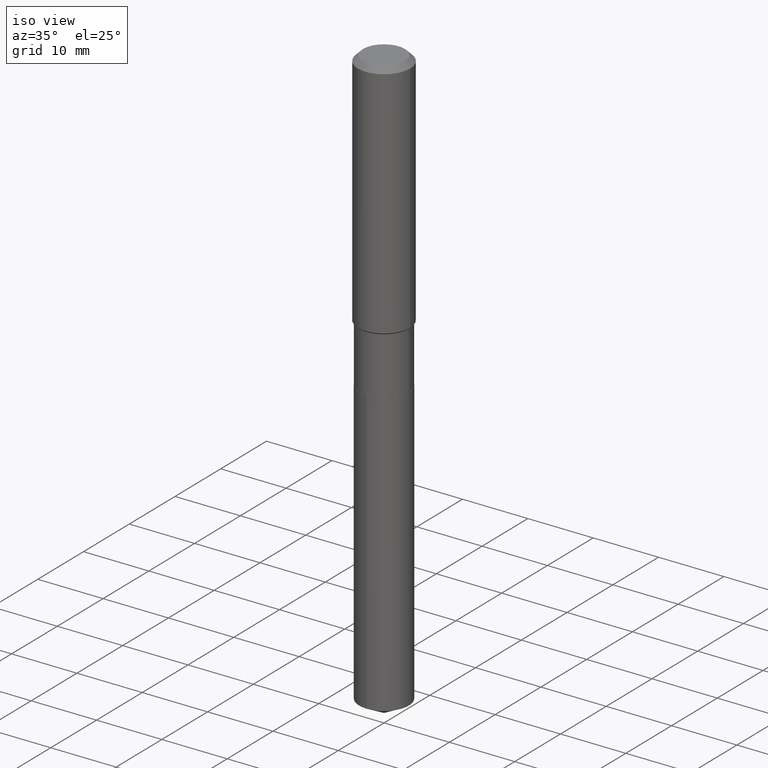
[diagram: clean part render]
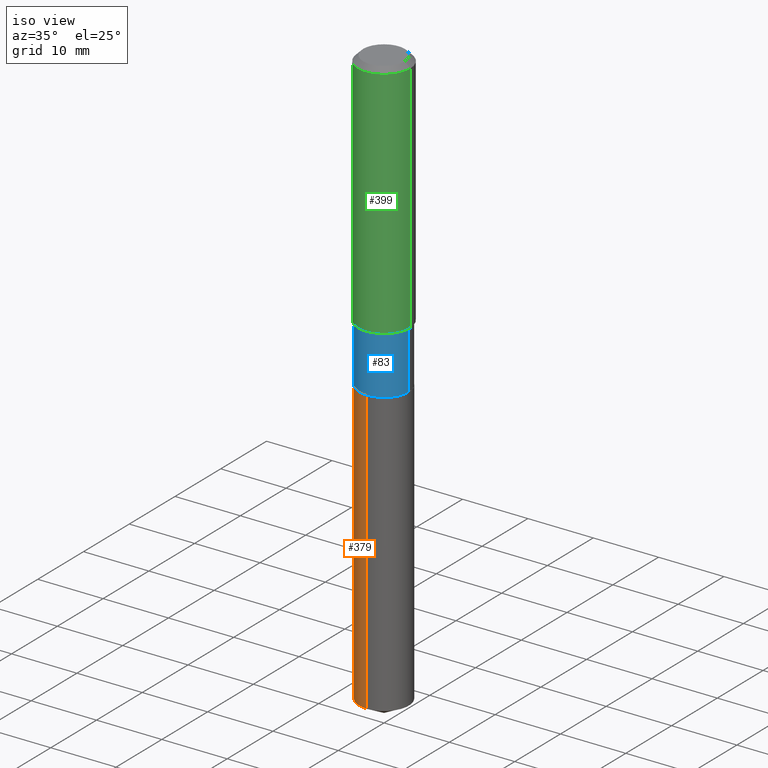
[diagram: same view with three faces highlighted in distinct colors, each labeled with its STEP entity id]
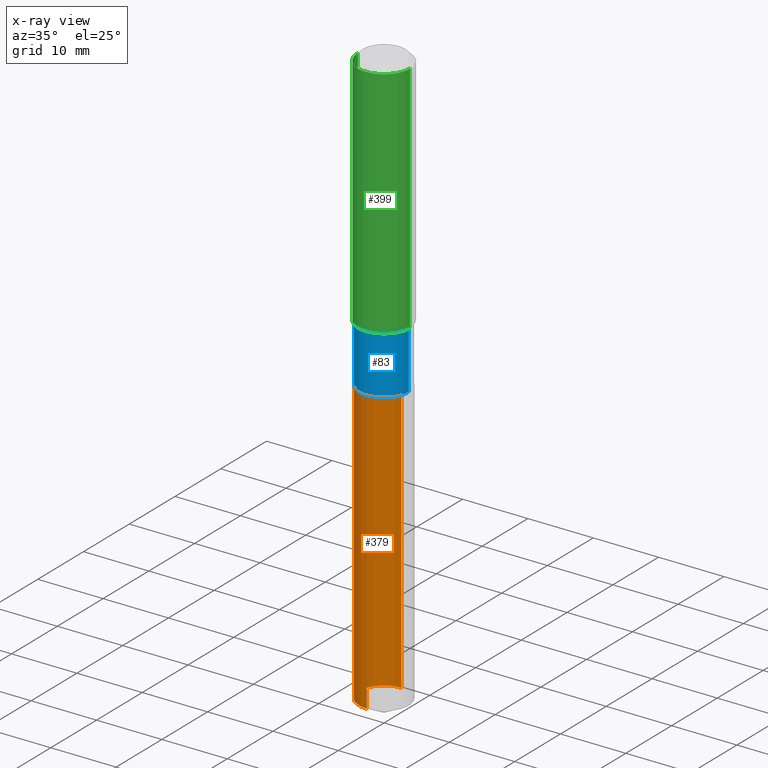
[diagram: x-ray of the same camera — body ghosted, the three highlighted faces saturated]
A machine part, iso view with three faces highlighted in distinct colors.
The next image is the same camera in x-ray (body ghosted, the three faces saturated) — at least one of them is partly hidden behind the body in this view.
Their STEP definitions:

[orange] entity #379 — the highlighted cylindrical surface (edge-blend (fillet) strip) has radius 3.7998 mm, axis along (-0, 0, 1).
#8 = DIRECTION ( 'NONE',  ( -2.445496282111016884E-29, 3.491441991753452634E-15, 1.000000000000000000 ) ) ;
#10 = CARTESIAN_POINT ( 'NONE',  ( 8.566906304021000333E-29, -1.223113754117293109E-14, -3.503156269023443237 ) ) ;
#25 = CARTESIAN_POINT ( 'NONE',  ( 1.062971932697195743E-15, 0.1495999999999937102, -1.795300000000000562 ) ) ;
#27 = VECTOR ( 'NONE', #158, 39.37007874015748143 ) ;
#44 = EDGE_CURVE ( 'NONE', #490, #115, #87, .T. ) ;
#63 = CIRCLE ( 'NONE', #415, 0.1496000000000000107 ) ;
#67 = DIRECTION ( 'NONE',  ( -2.445496282111016884E-29, 3.491441991753452634E-15, 1.000000000000000000 ) ) ;
#79 = ORIENTED_EDGE ( 'NONE', *, *, #97, .T. ) ;
#87 = LINE ( 'NONE', #464, #27 ) ;
#97 = EDGE_CURVE ( 'NONE', #339, #148, #133, .T. ) ;
#112 = CARTESIAN_POINT ( 'NONE',  ( 4.390350147744175670E-29, -6.268256447625099205E-15, -1.795300000000000118 ) ) ;
#115 = VERTEX_POINT ( 'NONE', #25 ) ;
#116 = CARTESIAN_POINT ( 'NONE',  ( 1.062971932697195546E-15, 0.1495999999999878260, -3.503156269023444125 ) ) ;
#133 = LINE ( 'NONE', #238, #272 ) ;
#142 = CYLINDRICAL_SURFACE ( 'NONE', #186, 0.1496000000000000107 ) ;
#148 = VERTEX_POINT ( 'NONE', #172 ) ;
#158 = DIRECTION ( 'NONE',  ( -2.445496282111017164E-29, 3.491441991753452240E-15, 1.000000000000000000 ) ) ;
#172 = CARTESIAN_POINT ( 'NONE',  ( -1.044651216581821425E-15, -0.1496000000000062835, -1.795299999999999452 ) ) ;
#173 = CARTESIAN_POINT ( 'NONE',  ( -1.044651216581780009E-15, -0.1496000000000122510, -3.503156269023442793 ) ) ;
#186 = AXIS2_PLACEMENT_3D ( 'NONE', #254, #446, #416 ) ;
#238 = CARTESIAN_POINT ( 'NONE',  ( -1.044651216581821622E-15, -0.1496000000000062835, -1.795299999999999452 ) ) ;
#254 = CARTESIAN_POINT ( 'NONE',  ( 4.390350147744175670E-29, -6.268256447625099205E-15, -1.795300000000000118 ) ) ;
#258 = CIRCLE ( 'NONE', #404, 0.1496000000000000107 ) ;
#259 = DIRECTION ( 'NONE',  ( -6.982962677686265922E-15, -1.000000000000000000, 3.652203200085913145E-15 ) ) ;
#267 = ORIENTED_EDGE ( 'NONE', *, *, #44, .F. ) ;
#272 = VECTOR ( 'NONE', #274, 39.37007874015748143 ) ;
#274 = DIRECTION ( 'NONE',  ( -2.445496282111017164E-29, 3.491441991753452240E-15, 1.000000000000000000 ) ) ;
#299 = DIRECTION ( 'NONE',  ( -6.982962677686266711E-15, -1.000000000000000000, 3.652203200085913145E-15 ) ) ;
#339 = VERTEX_POINT ( 'NONE', #173 ) ;
#343 = ORIENTED_EDGE ( 'NONE', *, *, #367, .F. ) ;
#365 = ORIENTED_EDGE ( 'NONE', *, *, #474, .T. ) ;
#367 = EDGE_CURVE ( 'NONE', #115, #148, #258, .T. ) ;
#372 = FACE_OUTER_BOUND ( 'NONE', #426, .T. ) ;
#379 = ADVANCED_FACE ( 'NONE', ( #372 ), #142, .T. ) ;
#404 = AXIS2_PLACEMENT_3D ( 'NONE', #112, #67, #259 ) ;
#415 = AXIS2_PLACEMENT_3D ( 'NONE', #10, #8, #299 ) ;
#416 = DIRECTION ( 'NONE',  ( -6.982962677686266711E-15, -1.000000000000000000, 3.652203200085913145E-15 ) ) ;
#426 = EDGE_LOOP ( 'NONE', ( #267, #365, #79, #343 ) ) ;
#446 = DIRECTION ( 'NONE',  ( -2.445496282111016884E-29, 3.491441991753452634E-15, 1.000000000000000000 ) ) ;
#464 = CARTESIAN_POINT ( 'NONE',  ( 1.062971932697153933E-15, 0.1495999999999937657, -1.795300000000000562 ) ) ;
#474 = EDGE_CURVE ( 'NONE', #490, #339, #63, .T. ) ;
#490 = VERTEX_POINT ( 'NONE', #116 ) ;

[blue] entity #83 — the highlighted cylindrical surface (edge-blend (fillet) strip) has radius 3.7998 mm, axis along (-0, 0, 1).
#5 = AXIS2_PLACEMENT_3D ( 'NONE', #137, #441, #219 ) ;
#28 = CARTESIAN_POINT ( 'NONE',  ( 0.1495999999999999830, -1.044651216581865404E-15, 7.294760456590720327E-30 ) ) ;
#29 = DIRECTION ( 'NONE',  ( -2.445468806185136877E-29, 3.491481338843145188E-15, 1.000000000000000000 ) ) ;
#71 = AXIS2_PLACEMENT_3D ( 'NONE', #125, #263, #420 ) ;
#74 = CARTESIAN_POINT ( 'NONE',  ( -0.1495999999999999830, -4.603702280245315850E-15, -1.451200000000000045 ) ) ;
#83 = ADVANCED_FACE ( 'NONE', ( #455 ), #195, .T. ) ;
#88 = VECTOR ( 'NONE', #29, 39.37007874015748143 ) ;
#99 = LINE ( 'NONE', #28, #134 ) ;
#113 = EDGE_CURVE ( 'NONE', #192, #187, #99, .T. ) ;
#125 = CARTESIAN_POINT ( 'NONE',  ( 0.000000000000000000, 0.000000000000000000, 0.000000000000000000 ) ) ;
#131 = CARTESIAN_POINT ( 'NONE',  ( 0.1496000000000000107, -7.311161923537544091E-15, -1.794800000000000173 ) ) ;
#134 = VECTOR ( 'NONE', #248, 39.37007874015748143 ) ;
#137 = CARTESIAN_POINT ( 'NONE',  ( 3.548864331535870340E-29, -5.066837718929173118E-15, -1.451200000000000045 ) ) ;
#187 = VERTEX_POINT ( 'NONE', #281 ) ;
#192 = VERTEX_POINT ( 'NONE', #131 ) ;
#195 = CYLINDRICAL_SURFACE ( 'NONE', #71, 0.1495999999999999830 ) ;
#219 = DIRECTION ( 'NONE',  ( 1.000000000000000000, -6.982962677686262766E-15, 0.000000000000000000 ) ) ;
#241 = EDGE_CURVE ( 'NONE', #447, #192, #257, .T. ) ;
#248 = DIRECTION ( 'NONE',  ( -2.445468806185136877E-29, 3.491481338843145188E-15, 1.000000000000000000 ) ) ;
#255 = ORIENTED_EDGE ( 'NONE', *, *, #113, .T. ) ;
#257 = CIRCLE ( 'NONE', #322, 0.1496000000000000107 ) ;
#263 = DIRECTION ( 'NONE',  ( -2.445468806185136597E-29, 3.491481338843145583E-15, 1.000000000000000000 ) ) ;
#269 = EDGE_LOOP ( 'NONE', ( #332, #443, #255, #330 ) ) ;
#281 = CARTESIAN_POINT ( 'NONE',  ( 0.1495999999999999830, -6.111488935511037930E-15, -1.451200000000000045 ) ) ;
#304 = EDGE_CURVE ( 'NONE', #447, #360, #327, .T. ) ;
#311 = CIRCLE ( 'NONE', #5, 0.1495999999999999830 ) ;
#313 = EDGE_CURVE ( 'NONE', #360, #187, #311, .T. ) ;
#322 = AXIS2_PLACEMENT_3D ( 'NONE', #396, #324, #471 ) ;
#324 = DIRECTION ( 'NONE',  ( -2.445468806185136597E-29, 3.491481338843145583E-15, 1.000000000000000000 ) ) ;
#327 = LINE ( 'NONE', #486, #88 ) ;
#330 = ORIENTED_EDGE ( 'NONE', *, *, #313, .F. ) ;
#332 = ORIENTED_EDGE ( 'NONE', *, *, #304, .F. ) ;
#360 = VERTEX_POINT ( 'NONE', #74 ) ;
#378 = CARTESIAN_POINT ( 'NONE',  ( -0.1496000000000000107, -4.603702280245315061E-15, -1.794800000000000173 ) ) ;
#396 = CARTESIAN_POINT ( 'NONE',  ( 4.389127413341083429E-29, -6.266510706955677702E-15, -1.794800000000000173 ) ) ;
#420 = DIRECTION ( 'NONE',  ( 1.000000000000000000, -6.982962677686266711E-15, 4.876176775795936353E-29 ) ) ;
#441 = DIRECTION ( 'NONE',  ( -2.445468806185136597E-29, 3.491481338843145583E-15, 1.000000000000000000 ) ) ;
#443 = ORIENTED_EDGE ( 'NONE', *, *, #241, .T. ) ;
#447 = VERTEX_POINT ( 'NONE', #378 ) ;
#455 = FACE_OUTER_BOUND ( 'NONE', #269, .T. ) ;
#471 = DIRECTION ( 'NONE',  ( 1.000000000000000000, -6.982962677686268288E-15, 0.000000000000000000 ) ) ;
#486 = CARTESIAN_POINT ( 'NONE',  ( -0.1495999999999999830, 1.062971932697109757E-15, -7.358726895021338760E-30 ) ) ;

[green] entity #399 — the highlighted cylindrical surface (edge-blend (fillet) strip) has radius 4.0005 mm, axis along (-0, 0, 1).
#14 = AXIS2_PLACEMENT_3D ( 'NONE', #482, #138, #329 ) ;
#17 = VERTEX_POINT ( 'NONE', #82 ) ;
#33 = CARTESIAN_POINT ( 'NONE',  ( 3.529545127967007664E-29, -5.039255016352311783E-15, -1.443299999999999805 ) ) ;
#43 = VERTEX_POINT ( 'NONE', #303 ) ;
#69 = DIRECTION ( 'NONE',  ( -2.445468806185136877E-29, 3.491481338843145188E-15, 1.000000000000000000 ) ) ;
#82 = CARTESIAN_POINT ( 'NONE',  ( 0.1575000000000001676, -6.139071638087900053E-15, -1.443299999999999805 ) ) ;
#100 = LINE ( 'NONE', #409, #171 ) ;
#111 = VECTOR ( 'NONE', #393, 39.37007874015748143 ) ;
#117 = VERTEX_POINT ( 'NONE', #478 ) ;
#122 = AXIS2_PLACEMENT_3D ( 'NONE', #33, #489, #178 ) ;
#138 = DIRECTION ( 'NONE',  ( -2.445468806185136597E-29, 3.491481338843145583E-15, 1.000000000000000000 ) ) ;
#141 = AXIS2_PLACEMENT_3D ( 'NONE', #183, #252, #481 ) ;
#156 = ORIENTED_EDGE ( 'NONE', *, *, #391, .F. ) ;
#171 = VECTOR ( 'NONE', #69, 39.37007874015748143 ) ;
#174 = EDGE_LOOP ( 'NONE', ( #288, #184, #449, #156 ) ) ;
#178 = DIRECTION ( 'NONE',  ( 1.000000000000000000, -6.982962677686267499E-15, 0.000000000000000000 ) ) ;
#183 = CARTESIAN_POINT ( 'NONE',  ( 7.703226739483226971E-31, -1.099816621735597538E-16, -0.03150000000000019451 ) ) ;
#184 = ORIENTED_EDGE ( 'NONE', *, *, #406, .T. ) ;
#202 = CARTESIAN_POINT ( 'NONE',  ( 0.1575000000000000011, -1.209798283909146741E-15, -0.03150000000000019451 ) ) ;
#217 = CIRCLE ( 'NONE', #141, 0.1575000000000000011 ) ;
#249 = EDGE_CURVE ( 'NONE', #17, #260, #438, .T. ) ;
#250 = FACE_OUTER_BOUND ( 'NONE', #174, .T. ) ;
#252 = DIRECTION ( 'NONE',  ( -2.445468806185136597E-29, 3.491481338843145583E-15, 1.000000000000000000 ) ) ;
#260 = VERTEX_POINT ( 'NONE', #202 ) ;
#288 = ORIENTED_EDGE ( 'NONE', *, *, #398, .F. ) ;
#303 = CARTESIAN_POINT ( 'NONE',  ( -0.1575000000000001676, -3.920150207530152602E-15, -1.443299999999999805 ) ) ;
#329 = DIRECTION ( 'NONE',  ( 1.000000000000000000, -6.982962677686267499E-15, 4.876176775795936353E-29 ) ) ;
#391 = EDGE_CURVE ( 'NONE', #117, #260, #217, .T. ) ;
#393 = DIRECTION ( 'NONE',  ( -2.445468806185136877E-29, 3.491481338843145188E-15, 1.000000000000000000 ) ) ;
#397 = CARTESIAN_POINT ( 'NONE',  ( 0.1575000000000000844, -1.099816621735587677E-15, 7.679978421878603638E-30 ) ) ;
#398 = EDGE_CURVE ( 'NONE', #43, #117, #100, .T. ) ;
#399 = ADVANCED_FACE ( 'NONE', ( #250 ), #403, .T. ) ;
#403 = CYLINDRICAL_SURFACE ( 'NONE', #14, 0.1575000000000000844 ) ;
#406 = EDGE_CURVE ( 'NONE', #43, #17, #451, .T. ) ;
#409 = CARTESIAN_POINT ( 'NONE',  ( -0.1575000000000000844, 1.119104808822158392E-15, -7.747322767151481189E-30 ) ) ;
#438 = LINE ( 'NONE', #397, #111 ) ;
#449 = ORIENTED_EDGE ( 'NONE', *, *, #249, .T. ) ;
#451 = CIRCLE ( 'NONE', #122, 0.1575000000000001676 ) ;
#478 = CARTESIAN_POINT ( 'NONE',  ( -0.1575000000000000011, -1.455513530440777031E-15, -0.03150000000000019451 ) ) ;
#481 = DIRECTION ( 'NONE',  ( 1.000000000000000000, -6.982962677686265922E-15, 0.000000000000000000 ) ) ;
#482 = CARTESIAN_POINT ( 'NONE',  ( 0.000000000000000000, 0.000000000000000000, 0.000000000000000000 ) ) ;
#489 = DIRECTION ( 'NONE',  ( -2.445468806185136597E-29, 3.491481338843145583E-15, 1.000000000000000000 ) ) ;